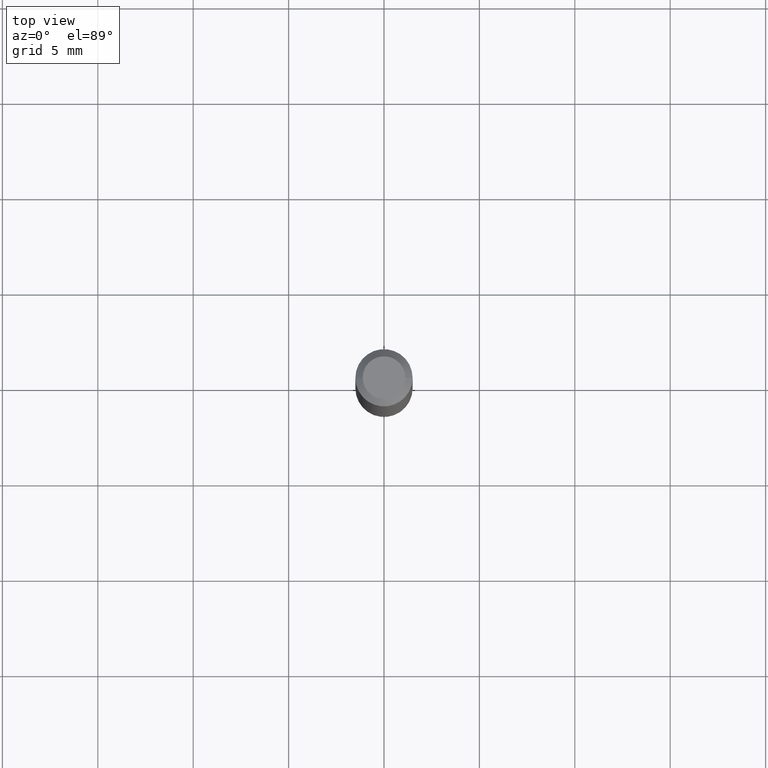
[diagram: clean part render]
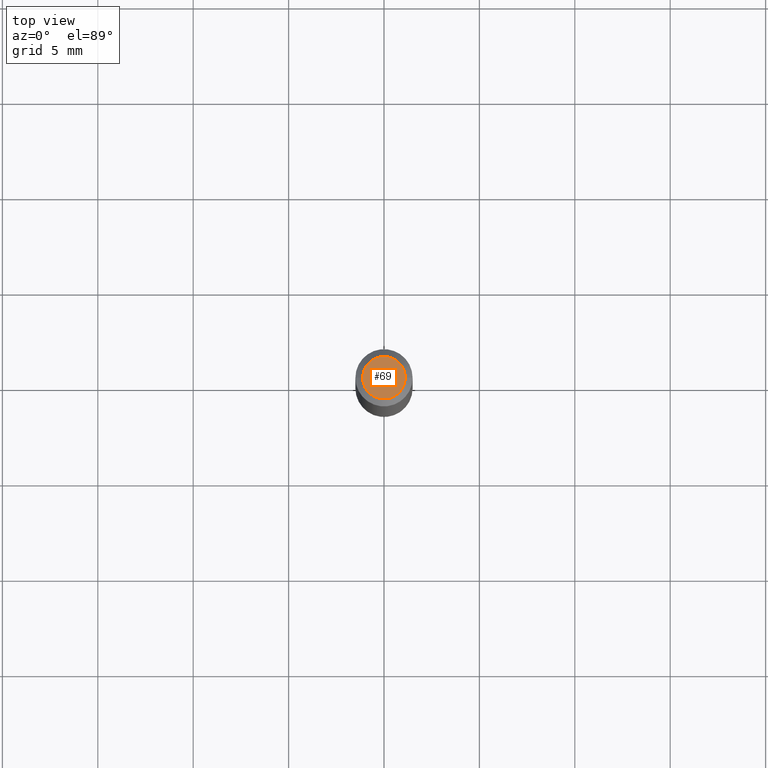
[diagram: same view with one face highlighted and labeled with its STEP entity id]
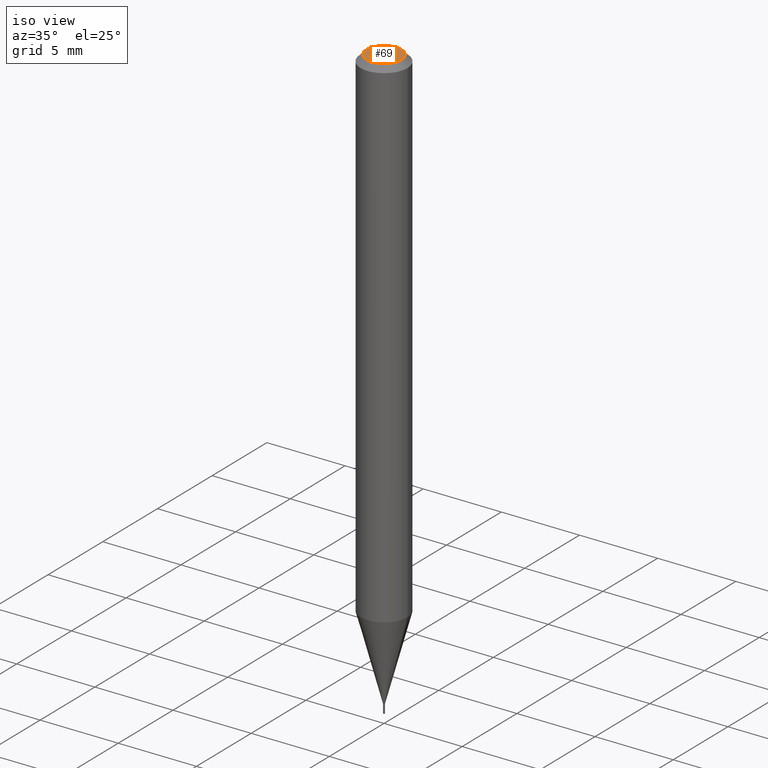
[diagram: same view with one face highlighted and labeled with its STEP entity id]
A machine part, top view. The second image highlights one B-rep face of the part: STEP entity #69.
A second angle (iso view) of the same face is appended — the face is thin or edge-on in the first view.
In plain terms, the highlighted planar face has unit normal (0, -0, -1).
Its self-contained STEP definition (entity closure, byte-faithful):
#10 = CARTESIAN_POINT ( 'NONE',  ( 0.04404999999999999888, -3.798447818264435920E-16, 1.385648594563833284E-15 ) ) ;
#15 = CARTESIAN_POINT ( 'NONE',  ( -3.388560414340124120E-44, 4.837966210113847534E-30, 1.385648594563830917E-15 ) ) ;
#18 = DIRECTION ( 'NONE',  ( 1.000000000000000000, -6.982962677686265922E-15, 4.957392940945096353E-29 ) ) ;
#25 = EDGE_CURVE ( 'NONE', #251, #466, #276, .T. ) ;
#55 = PLANE ( 'NONE',  #103 ) ;
#69 = ADVANCED_FACE ( 'NONE', ( #376 ), #55, .F. ) ;
#79 = AXIS2_PLACEMENT_3D ( 'NONE', #15, #279, #239 ) ;
#88 = EDGE_CURVE ( 'NONE', #466, #251, #186, .T. ) ;
#90 = CARTESIAN_POINT ( 'NONE',  ( -0.04404999999999999888, 3.337856159934058298E-16, 1.385648594563828748E-15 ) ) ;
#93 = DIRECTION ( 'NONE',  ( -2.445468806185136597E-29, 3.491481338843145583E-15, 1.000000000000000000 ) ) ;
#103 = AXIS2_PLACEMENT_3D ( 'NONE', #314, #405, #453 ) ;
#137 = ORIENTED_EDGE ( 'NONE', *, *, #25, .T. ) ;
#143 = ORIENTED_EDGE ( 'NONE', *, *, #88, .T. ) ;
#179 = EDGE_LOOP ( 'NONE', ( #143, #137 ) ) ;
#186 = CIRCLE ( 'NONE', #79, 0.04404999999999999888 ) ;
#239 = DIRECTION ( 'NONE',  ( 1.000000000000000000, -6.982962677686265922E-15, 4.957392940945096353E-29 ) ) ;
#251 = VERTEX_POINT ( 'NONE', #10 ) ;
#276 = CIRCLE ( 'NONE', #392, 0.04404999999999999888 ) ;
#279 = DIRECTION ( 'NONE',  ( -2.445468806185136597E-29, 3.491481338843145583E-15, 1.000000000000000000 ) ) ;
#314 = CARTESIAN_POINT ( 'NONE',  ( 3.075995059520799729E-16, 0.04404999999999999888, 5.390245443058748806E-16 ) ) ;
#365 = CARTESIAN_POINT ( 'NONE',  ( -3.388560414340124120E-44, 4.837966210113847534E-30, 1.385648594563830917E-15 ) ) ;
#376 = FACE_OUTER_BOUND ( 'NONE', #179, .T. ) ;
#392 = AXIS2_PLACEMENT_3D ( 'NONE', #365, #93, #18 ) ;
#405 = DIRECTION ( 'NONE',  ( 2.438088387897960049E-29, -3.491481338843145188E-15, -1.000000000000000000 ) ) ;
#453 = DIRECTION ( 'NONE',  ( -1.000000000000000000, 6.982962677686265922E-15, -4.876176775795935793E-29 ) ) ;
#466 = VERTEX_POINT ( 'NONE', #90 ) ;